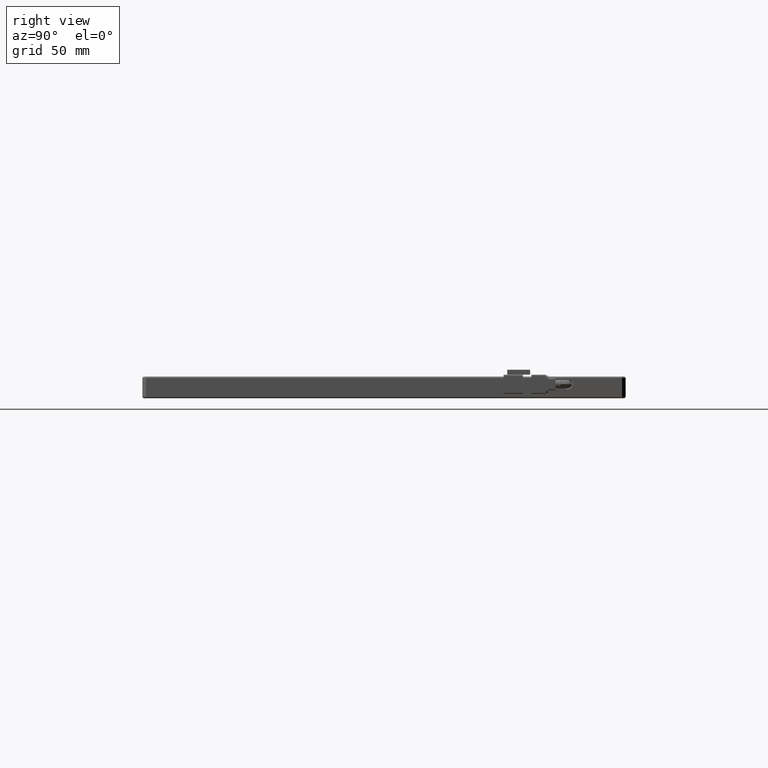
[diagram: clean part render]
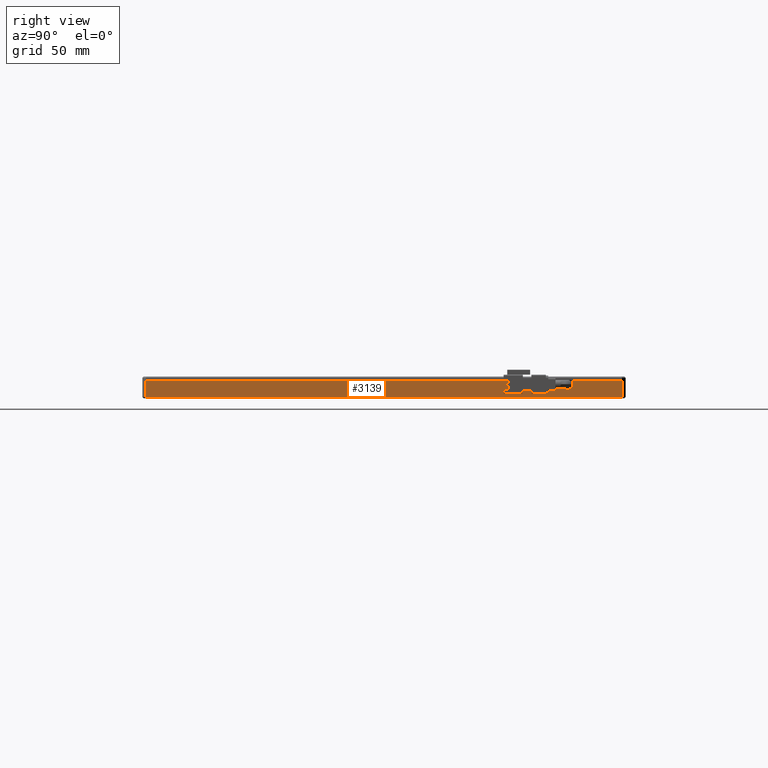
[diagram: same view with one face highlighted and labeled with its STEP entity id]
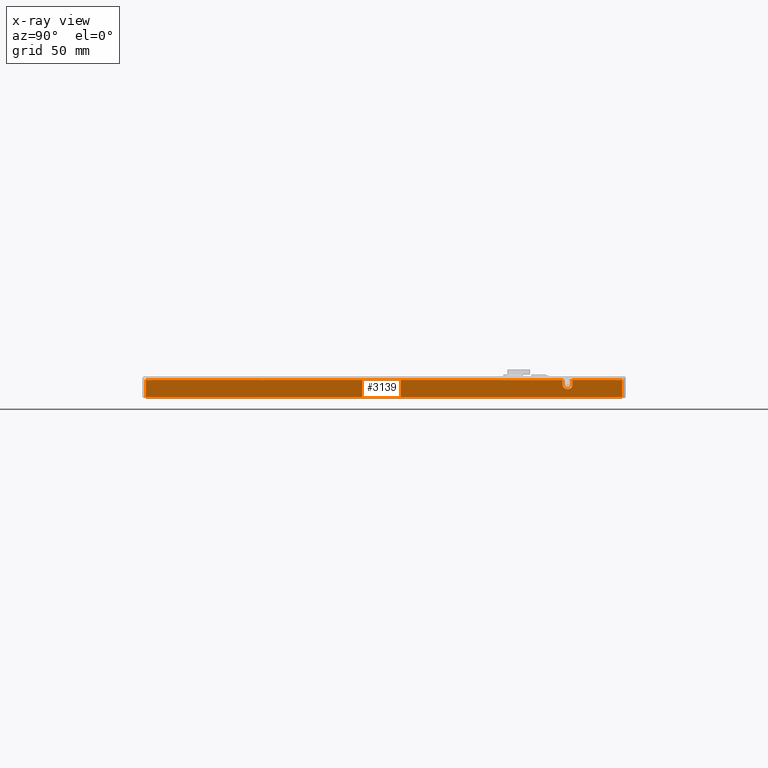
[diagram: x-ray of the same camera — body ghosted, the highlighted face saturated]
A machine part, right view. The second image highlights one B-rep face of the part: STEP entity #3139.
The next image is the same camera in x-ray: the body ghosted, the highlighted face saturated — about 0% of this face is hidden behind the body in this view.
In plain terms, the highlighted planar face has unit normal (-1, 0, 0).
Its self-contained STEP definition (entity closure, byte-faithful):
#4 = VERTEX_POINT ( 'NONE', #23165 ) ;
#231 = DIRECTION ( 'NONE',  ( -6.608470384612831600E-015, 1.000000000000000000, 0.0000000000000000000 ) ) ;
#1798 = LINE ( 'NONE', #25758, #7554 ) ;
#3139 = ADVANCED_FACE ( 'NONE', ( #22437 ), #11601, .F. ) ;
#4348 = EDGE_CURVE ( 'NONE', #6993, #17678, #6136, .T. ) ;
#5709 = CARTESIAN_POINT ( 'NONE',  ( 55.78104460093899800, 93.05082159624419100, 4.499999999999999100 ) ) ;
#6136 = LINE ( 'NONE', #31885, #24211 ) ;
#6993 = VERTEX_POINT ( 'NONE', #28232 ) ;
#7554 = VECTOR ( 'NONE', #28287, 1000.000000000000000 ) ;
#7864 = CARTESIAN_POINT ( 'NONE',  ( 55.78104460093896900, -83.54917840375587400, -2.500000000000001800 ) ) ;
#8504 = ORIENTED_EDGE ( 'NONE', *, *, #25142, .T. ) ;
#8534 = AXIS2_PLACEMENT_3D ( 'NONE', #24002, #9270, #26501 ) ;
#8927 = LINE ( 'NONE', #30441, #15441 ) ;
#9270 = DIRECTION ( 'NONE',  ( -1.000000000000000000, 0.0000000000000000000, 0.0000000000000000000 ) ) ;
#9787 = ORIENTED_EDGE ( 'NONE', *, *, #31192, .T. ) ;
#10106 = VERTEX_POINT ( 'NONE', #7864 ) ;
#11109 = VERTEX_POINT ( 'NONE', #5709 ) ;
#11495 = CARTESIAN_POINT ( 'NONE',  ( 55.78104460093896900, 93.05082159624419100, 4.499999999999999100 ) ) ;
#11601 = PLANE ( 'NONE',  #8534 ) ;
#12232 = DIRECTION ( 'NONE',  ( -0.0000000000000000000, -0.0000000000000000000, -1.000000000000000000 ) ) ;
#12568 = AXIS2_PLACEMENT_3D ( 'NONE', #29775, #14933, #231 ) ;
#13165 = DIRECTION ( 'NONE',  ( -0.0000000000000000000, -1.000000000000000000, -0.0000000000000000000 ) ) ;
#14577 = CARTESIAN_POINT ( 'NONE',  ( 55.78104460093896900, 114.9508215962441300, 4.499999999999999100 ) ) ;
#14933 = DIRECTION ( 'NONE',  ( 1.000000000000000000, 6.608470384970679400E-015, -0.0000000000000000000 ) ) ;
#14957 = VERTEX_POINT ( 'NONE', #25688 ) ;
#15052 = LINE ( 'NONE', #26943, #27425 ) ;
#15441 = VECTOR ( 'NONE', #13165, 1000.000000000000000 ) ;
#15478 = ORIENTED_EDGE ( 'NONE', *, *, #31186, .F. ) ;
#16165 = LINE ( 'NONE', #11495, #21946 ) ;
#16815 = CARTESIAN_POINT ( 'NONE',  ( 55.78104460094465400, 88.85082159627337700, 2.799999999999995800 ) ) ;
#16896 = VERTEX_POINT ( 'NONE', #17132 ) ;
#17132 = CARTESIAN_POINT ( 'NONE',  ( 55.78104460098443000, 93.05082159626483900, 2.800000000000004300 ) ) ;
#17678 = VERTEX_POINT ( 'NONE', #16815 ) ;
#19272 = CARTESIAN_POINT ( 'NONE',  ( 55.78104460093896900, 113.4508215962440500, 4.499999999999999100 ) ) ;
#20403 = EDGE_CURVE ( 'NONE', #23012, #10106, #8927, .T. ) ;
#20547 = LINE ( 'NONE', #14577, #26401 ) ;
#21639 = ORIENTED_EDGE ( 'NONE', *, *, #4348, .F. ) ;
#21946 = VECTOR ( 'NONE', #28833, 1000.000000000000000 ) ;
#22011 = CIRCLE ( 'NONE', #12568, 2.100000000019294900 ) ;
#22326 = ORIENTED_EDGE ( 'NONE', *, *, #22801, .F. ) ;
#22431 = VECTOR ( 'NONE', #31818, 1000.000000000000000 ) ;
#22437 = FACE_OUTER_BOUND ( 'NONE', #24331, .T. ) ;
#22801 = EDGE_CURVE ( 'NONE', #16896, #11109, #16165, .T. ) ;
#23012 = VERTEX_POINT ( 'NONE', #29549 ) ;
#23165 = CARTESIAN_POINT ( 'NONE',  ( 55.78104460093896900, -83.54917840375587400, 4.499999999999999100 ) ) ;
#23448 = ORIENTED_EDGE ( 'NONE', *, *, #31236, .F. ) ;
#24002 = CARTESIAN_POINT ( 'NONE',  ( 55.78104460093896900, -85.04917840375587400, 4.499999999999999100 ) ) ;
#24211 = VECTOR ( 'NONE', #12232, 1000.000000000000000 ) ;
#24331 = EDGE_LOOP ( 'NONE', ( #23448, #21639, #8504, #31268, #26119, #15478, #9787, #22326 ) ) ;
#24344 = EDGE_CURVE ( 'NONE', #10106, #4, #1798, .T. ) ;
#25142 = EDGE_CURVE ( 'NONE', #6993, #4, #20547, .T. ) ;
#25688 = CARTESIAN_POINT ( 'NONE',  ( 55.78104460093896900, 113.4508215962440700, 4.499999999999999100 ) ) ;
#25758 = CARTESIAN_POINT ( 'NONE',  ( 55.78104460093896900, -83.54917840375587400, 4.499999999999999100 ) ) ;
#26119 = ORIENTED_EDGE ( 'NONE', *, *, #20403, .F. ) ;
#26401 = VECTOR ( 'NONE', #31872, 1000.000000000000000 ) ;
#26501 = DIRECTION ( 'NONE',  ( 0.0000000000000000000, 0.0000000000000000000, 1.000000000000000000 ) ) ;
#26943 = CARTESIAN_POINT ( 'NONE',  ( 55.78104460093899800, 114.9508215962441300, 4.499999999999999100 ) ) ;
#27425 = VECTOR ( 'NONE', #29479, 1000.000000000000000 ) ;
#28232 = CARTESIAN_POINT ( 'NONE',  ( 55.78104460093899800, 88.85082159624414500, 4.499999999999999100 ) ) ;
#28287 = DIRECTION ( 'NONE',  ( 0.0000000000000000000, 0.0000000000000000000, 1.000000000000000000 ) ) ;
#28833 = DIRECTION ( 'NONE',  ( 0.0000000000000000000, 0.0000000000000000000, 1.000000000000000000 ) ) ;
#29042 = LINE ( 'NONE', #19272, #22431 ) ;
#29479 = DIRECTION ( 'NONE',  ( -0.0000000000000000000, -1.000000000000000000, -0.0000000000000000000 ) ) ;
#29549 = CARTESIAN_POINT ( 'NONE',  ( 55.78104460093896900, 113.4508215962441500, -2.500000000000006700 ) ) ;
#29775 = CARTESIAN_POINT ( 'NONE',  ( 55.78104460098445800, 90.95082159624419700, 2.799999999999998900 ) ) ;
#30441 = CARTESIAN_POINT ( 'NONE',  ( 55.78104460093896900, -85.04917840375587400, -2.500000000000001300 ) ) ;
#31186 = EDGE_CURVE ( 'NONE', #14957, #23012, #29042, .T. ) ;
#31192 = EDGE_CURVE ( 'NONE', #14957, #11109, #15052, .T. ) ;
#31236 = EDGE_CURVE ( 'NONE', #17678, #16896, #22011, .T. ) ;
#31268 = ORIENTED_EDGE ( 'NONE', *, *, #24344, .F. ) ;
#31818 = DIRECTION ( 'NONE',  ( -0.0000000000000000000, -0.0000000000000000000, -1.000000000000000000 ) ) ;
#31872 = DIRECTION ( 'NONE',  ( -0.0000000000000000000, -1.000000000000000000, -0.0000000000000000000 ) ) ;
#31885 = CARTESIAN_POINT ( 'NONE',  ( 55.78104460093896900, 88.85082159624411700, 4.499999999999999100 ) ) ;